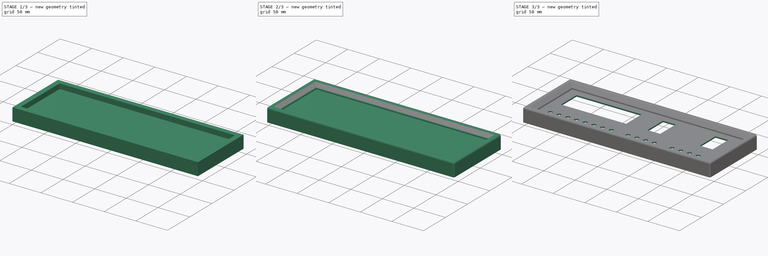
[diagram: build sequence overview — one tinted view per stage of 3, left to right]
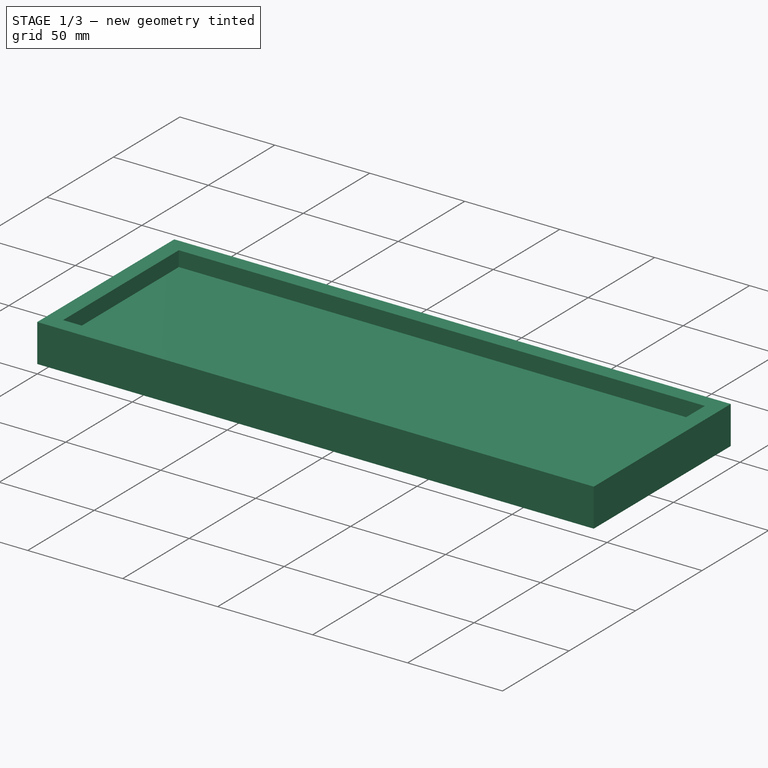
[diagram: stage 1 of 3 — iso view after this stage's code; geometry added in this stage tinted green]
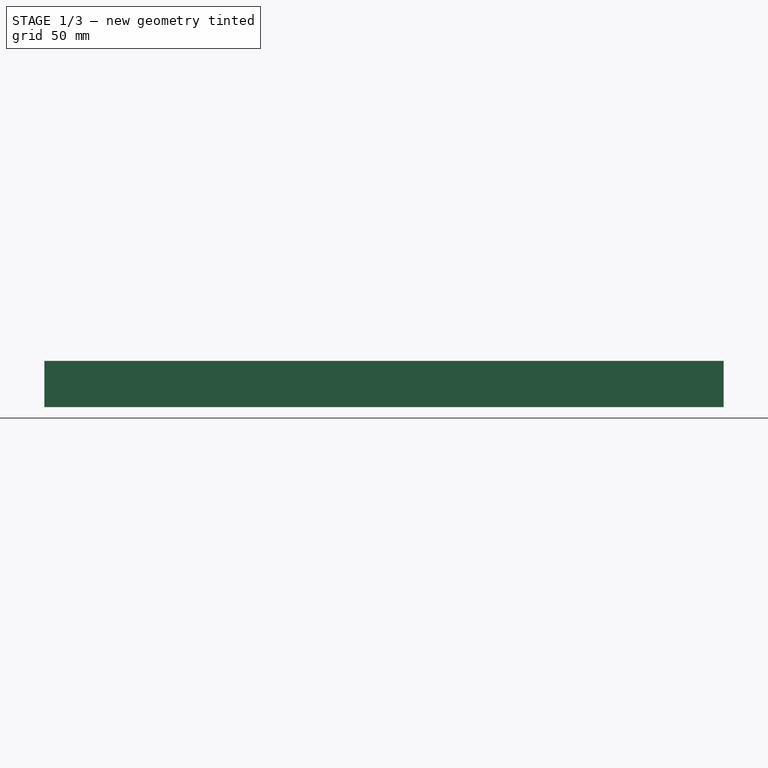
[diagram: stage 1 of 3 — front view after this stage's code; geometry added in this stage tinted green]
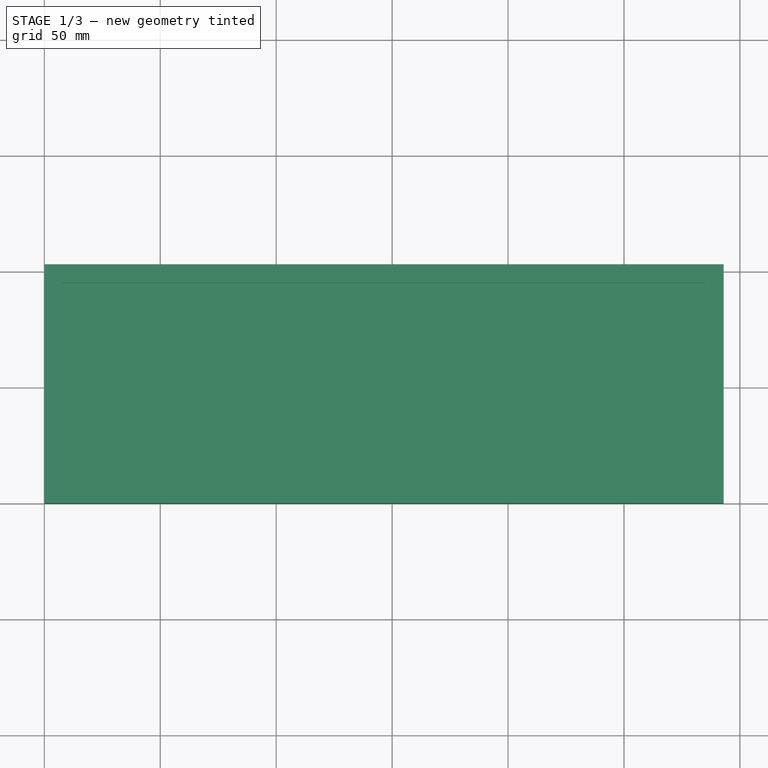
[diagram: stage 1 of 3 — top view after this stage's code; geometry added in this stage tinted green]
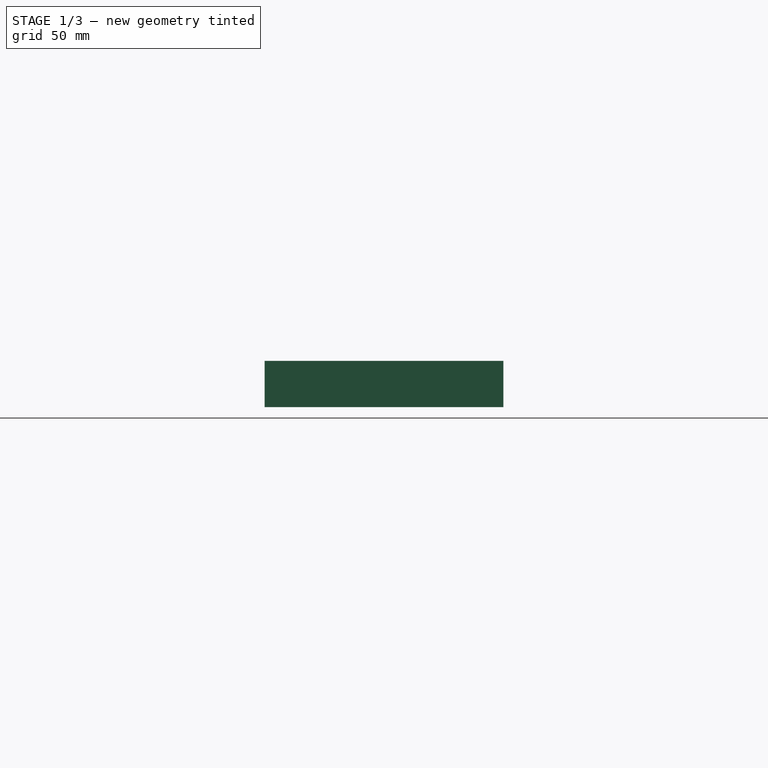
[diagram: stage 1 of 3 — right view after this stage's code; geometry added in this stage tinted green]
FCSTD DOCUMENT  (FreeCAD 0.19R24291 (Git))
Label: 3D printed front panel
License: All rights reserved
LicenseURL: http://en.wikipedia.org/wiki/All_rights_reserved
objects: Sketcher::SketchObject×4, PartDesign::Pocket×3, PartDesign::Pad×1, PartDesign::Chamfer×1, PartDesign::Fillet×1, PartDesign::Thickness×1, App::VRMLObject×1, PartDesign::Body×1
note: 19 computed .brp shape members not serialized (recipe doc carries the construction recipe); baked Part::Feature solids carry a one-line shape summary decoded from their .brp

FEATURE [Sketcher::SketchObject] Sketch
  FullyConstrained = true
  MapMode = 5
  Support = -> [XY_Plane]
  sketch-geometry (4):
    g0: LineSegment StartX=0 StartY=0 StartZ=0 EndX=293 EndY=0 EndZ=0
    g1: LineSegment StartX=293 StartY=0 StartZ=0 EndX=293 EndY=103 EndZ=0
    g2: LineSegment StartX=293 StartY=103 StartZ=0 EndX=0 EndY=103 EndZ=0
    g3: LineSegment StartX=0 StartY=103 StartZ=0 EndX=0 EndY=0 EndZ=0
  constraints (11):
    c: Coincident(g0,g1)
    c: Coincident(g1,g2)
    c: Coincident(g2,g3)
    c: Coincident(g3,g0)
    c: Horizontal(g0)
    c: Horizontal(g2)
    c: Vertical(g1)
    c: Vertical(g3)
    c: Coincident(g0,g-1)
    c: DistanceX(g2,g2) = 293
    c: DistanceY(g3,g3) = 103
FEATURE [PartDesign::Pad] Pad
  Direction = (1,1,1)
  Length = 20
  Length2 = 100
  Profile = -> Sketch
  Type = 0
FEATURE [Sketcher::SketchObject] Sketch001
  ExternalGeometry = -> [Pad]
  FullyConstrained = true
  MapMode = 5
  Placement = pos=(0,0,20) rot=(0,0,1;0rad)
  Support = -> [Pad]
  sketch-geometry (4):
    g0: LineSegment StartX=8 StartY=95 StartZ=0 EndX=285 EndY=95 EndZ=0
    g1: LineSegment StartX=285 StartY=95 StartZ=0 EndX=285 EndY=8 EndZ=0
    g2: LineSegment StartX=285 StartY=8 StartZ=0 EndX=8 EndY=8 EndZ=0
    g3: LineSegment StartX=8 StartY=8 StartZ=0 EndX=8 EndY=95 EndZ=0
  constraints (12):
    c: Coincident(g0,g1)
    c: Coincident(g1,g2)
    c: Coincident(g2,g3)
    c: Coincident(g3,g0)
    c: Horizontal(g0)
    c: Horizontal(g2)
    c: Vertical(g1)
    c: Vertical(g3)
    c: DistanceX(g-3,g0) = 8
    c: DistanceY(g0,g-3) = 8
    c: DistanceY(g-1,g2) = 8
    c: DistanceX(g0,g-4) = 8
FEATURE [PartDesign::Pocket] Pocket
  BaseFeature = -> Pad
  Length = 8
  Length2 = 100
  Profile = -> Sketch001
  Type = 0
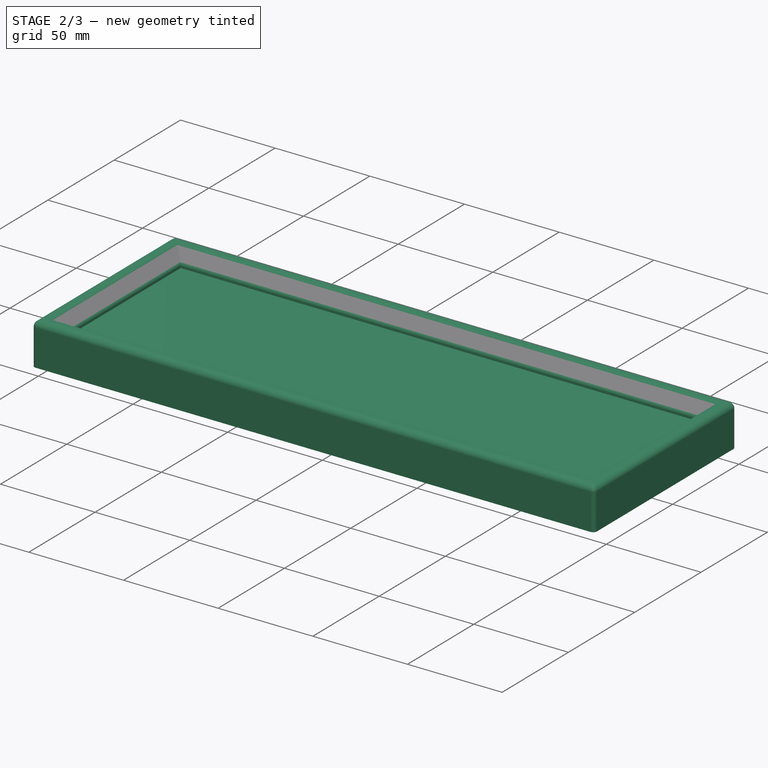
[diagram: stage 2 of 3 — iso view after this stage's code; geometry added in this stage tinted green]
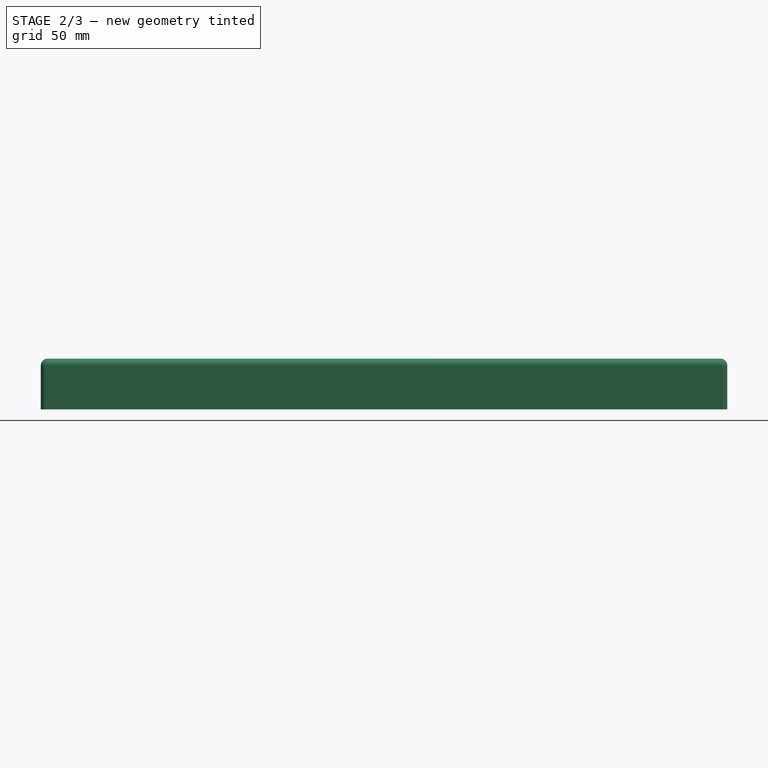
[diagram: stage 2 of 3 — front view after this stage's code; geometry added in this stage tinted green]
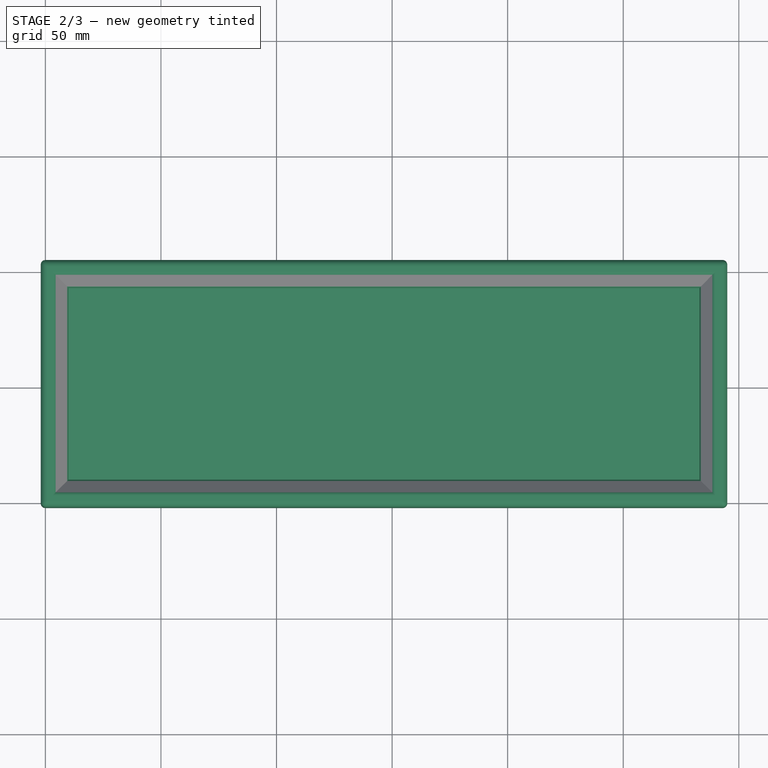
[diagram: stage 2 of 3 — top view after this stage's code; geometry added in this stage tinted green]
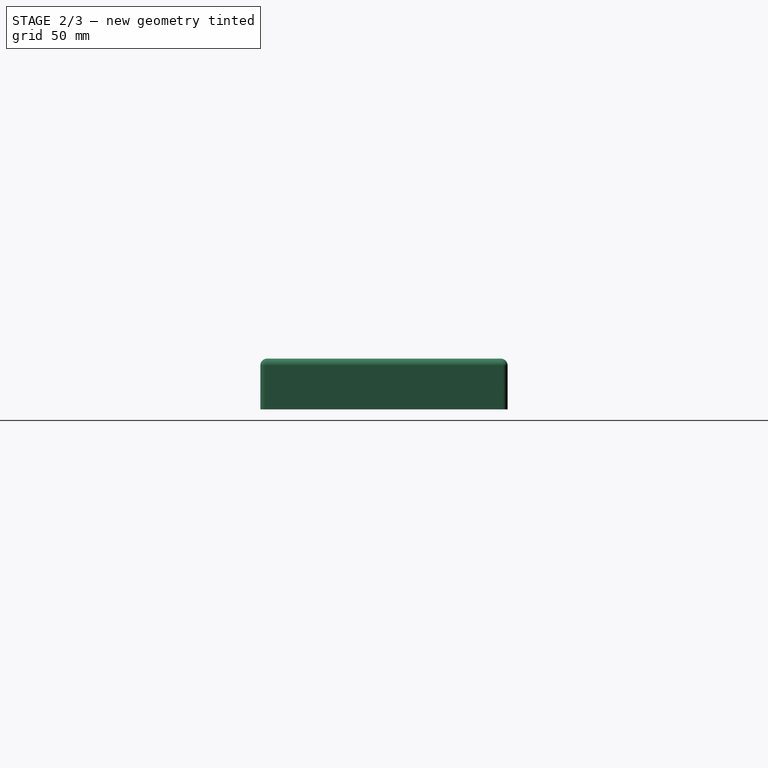
[diagram: stage 2 of 3 — right view after this stage's code; geometry added in this stage tinted green]
FEATURE [PartDesign::Chamfer] Chamfer
  Angle = 45
  Base = -> Pocket [Edge13,Edge16,Edge14,Edge15]
  BaseFeature = -> Pocket
  ChamferType = 0
  FlipDirection = false
  Size = 5
  Size2 = 1
  SupportTransform = false
FEATURE [PartDesign::Fillet] Fillet
  Base = -> Chamfer [Edge5,Edge6,Edge8,Edge7]
  BaseFeature = -> Chamfer
  Radius = 1
  SupportTransform = false
FEATURE [PartDesign::Thickness] Thickness
  Base = -> Fillet [Face18]
  BaseFeature = -> Fillet
  Intersection = false
  Join = 0
  Mode = 0
  SupportTransform = false
  Value = 2
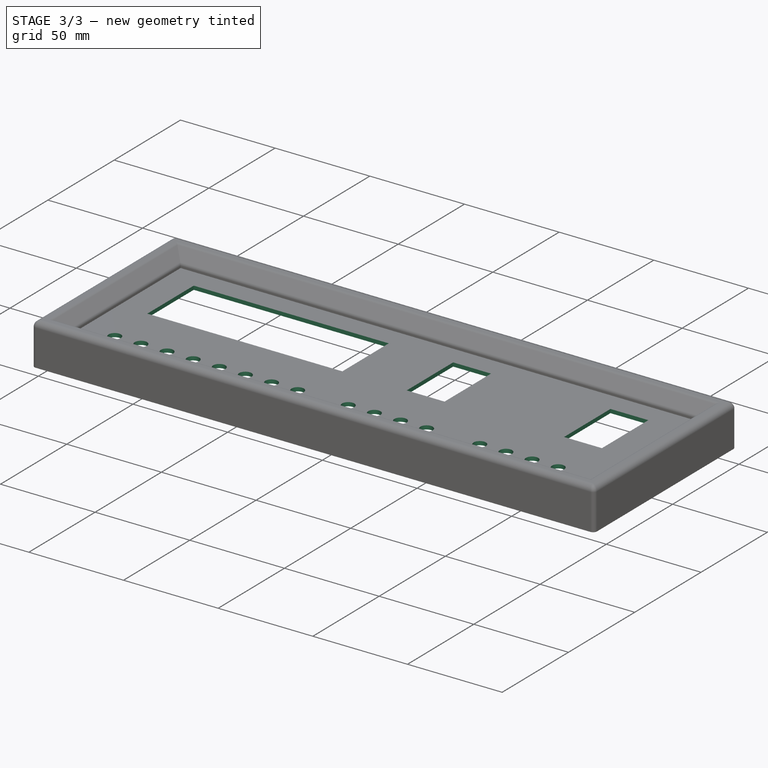
[diagram: stage 3 of 3 — iso view after this stage's code; geometry added in this stage tinted green]
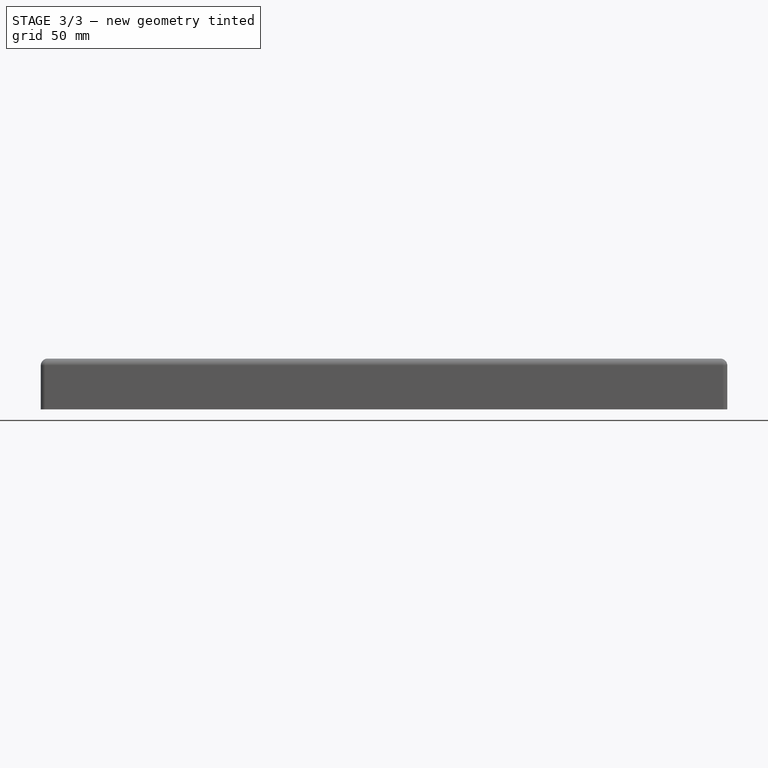
[diagram: stage 3 of 3 — front view after this stage's code; geometry added in this stage tinted green]
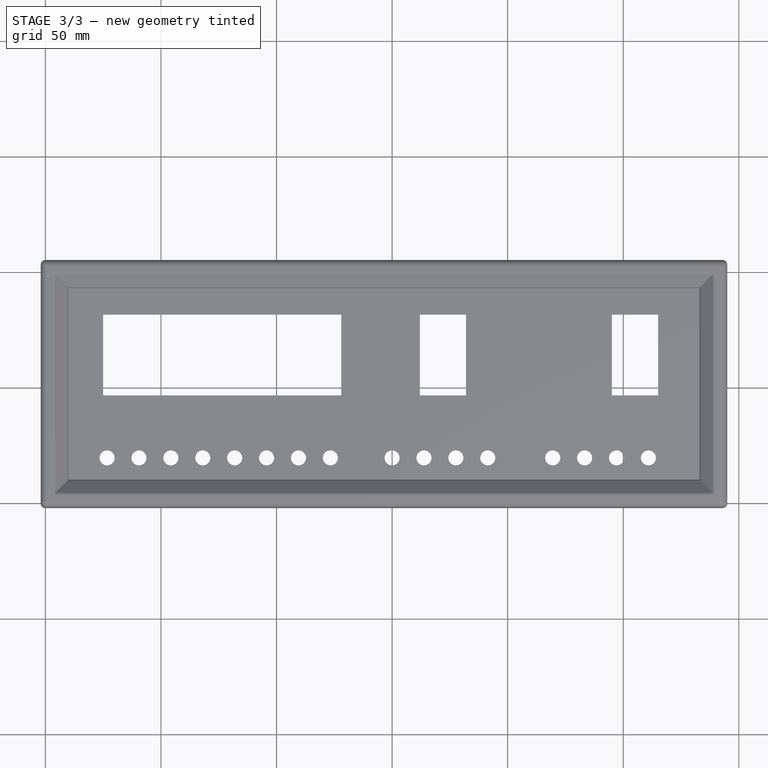
[diagram: stage 3 of 3 — top view after this stage's code; geometry added in this stage tinted green]
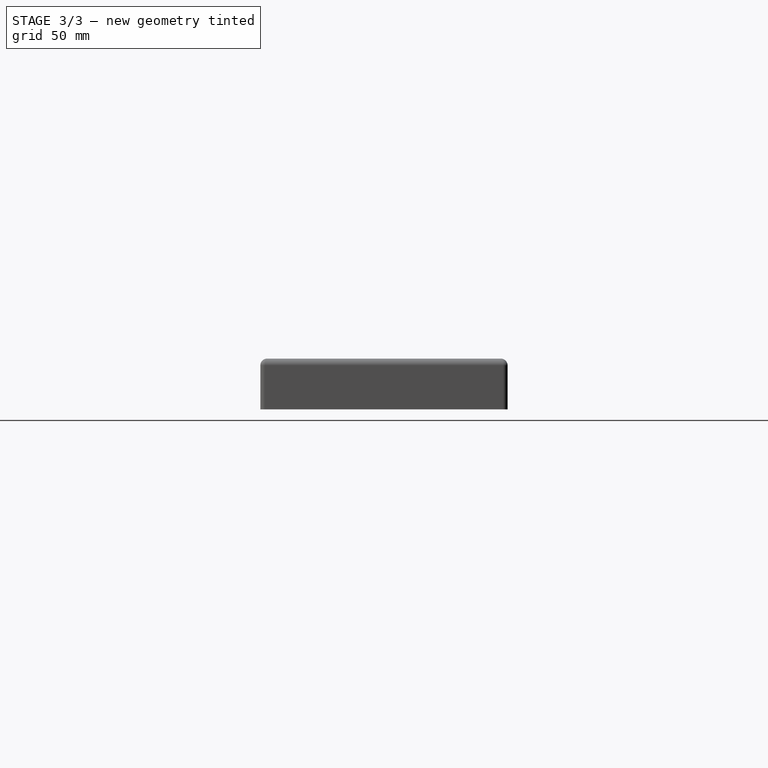
[diagram: stage 3 of 3 — right view after this stage's code; geometry added in this stage tinted green]
FEATURE [Sketcher::SketchObject] Sketch003
  FullyConstrained = false
  MapMode = 5
  Placement = pos=(0,0,14) rot=(0,0,1;0rad)
  sketch-geometry (12):
    g0: LineSegment StartX=25 StartY=81.5 StartZ=0 EndX=128 EndY=81.5 EndZ=0
    g1: LineSegment StartX=128 StartY=81.5 StartZ=0 EndX=128 EndY=46.5 EndZ=0
    g2: LineSegment StartX=128 StartY=46.5 StartZ=0 EndX=25 EndY=46.5 EndZ=0
    g3: LineSegment StartX=25 StartY=46.5 StartZ=0 EndX=25 EndY=81.5 EndZ=0
    g4: LineSegment StartX=162 StartY=81.5 StartZ=0 EndX=182 EndY=81.5 EndZ=0
    g5: LineSegment StartX=182 StartY=81.5 StartZ=0 EndX=182 EndY=46.5 EndZ=0
    g6: LineSegment StartX=182 StartY=46.5 StartZ=0 EndX=162 EndY=46.5 EndZ=0
    g7: LineSegment StartX=162 StartY=46.5 StartZ=0 EndX=162 EndY=81.5 EndZ=0
    g8: LineSegment StartX=245.1 StartY=81.5 StartZ=0 EndX=265.1 EndY=81.5 EndZ=0
    g9: LineSegment StartX=265.1 StartY=81.5 StartZ=0 EndX=265.1 EndY=46.5 EndZ=0
    g10: LineSegment StartX=265.1 StartY=46.5 StartZ=0 EndX=245.1 EndY=46.5 EndZ=0
    g11: LineSegment StartX=245.1 StartY=46.5 StartZ=0 EndX=245.1 EndY=81.5 EndZ=0
  constraints (33):
    c: Coincident(g0,g1)
    c: Coincident(g1,g2)
    c: Coincident(g2,g3)
    c: Coincident(g3,g0)
    c: Horizontal(g0)
    c: Horizontal(g2)
    c: Vertical(g1)
    c: Vertical(g3)
    c: DistanceY(g3,g3) = 35
    c: DistanceX(g0,g0) = 103
    c: Coincident(g4,g5)
    c: Coincident(g5,g6)
    c: Coincident(g6,g7)
    c: Coincident(g7,g4)
    c: Horizontal(g4)
    c: Horizontal(g6)
    c: Vertical(g5)
    c: Vertical(g7)
    c: Horizontal(g6,g1)
    c: Horizontal(g4,g0)
    c: DistanceX(g4,g4) = 20
    c: Coincident(g8,g9)
    c: Coincident(g9,g10)
    c: Coincident(g10,g11)
    c: Coincident(g11,g8)
    c: Horizontal(g8)
    c: Horizontal(g10)
    c: Vertical(g9)
    c: Vertical(g11)
    c: Horizontal(g8,g4)
    c: Horizontal(g10,g5)
    c: DistanceX(g8,g8) = 20
    c: DistanceX(g4,g8) = 63.1
FEATURE [PartDesign::Pocket] Pocket002
  BaseFeature = -> Thickness
  Length = 5
  Length2 = 100
  Profile = -> Sketch003
  Type = 0
FEATURE [App::VRMLObject] front_panel  label="front panel"
  Placement = pos=(-47.4,143,-4) rot=(0,0,1;0rad)
  Resources = front_panel/shapes3D/PinSocket_1x01_P2.54mm_Vertical.wrl | front_panel/shapes3D/Toggle Switch - Double .wrl | front_panel/shapes3D/C_Disc_D5.0mm_W2.5mm_P5.00mm.wrl | front_panel/shapes3D/CP_Axial_L10.0mm_D6.0mm_P15.00mm_Horizontal.wrl | front_panel/shapes3D/PinSocket_1x04_P2.54mm_Vertical.wrl | front_panel/shapes3D/R_Axial_DIN0207_L6.3mm_D2.5mm_P10.16mm_Horizontal.wrl | front_panel/shapes3D/PinSocket_1x08_P2.54mm_Vertical.wrl | front_panel/shapes3D/PinSocket_1x16_P2.54mm_Vertical.wrl | front_panel/shapes3D/R_Axial_DIN0207_L6.3mm_D2.5mm_P15.24mm_Horizontal.wrl | front_panel/shapes3D/DIP-14_W7.62mm.wrl | front_panel/shapes3D/LED_D5.0mm.wrl | front_panel/shapes3D/C_Disc_D4.3mm_W1.9mm_P5.00mm.wrl | front_panel/shapes3D/R_Axial_DIN0207_L6.3mm_D2.5mm_P7.62mm_Horizontal.wrl | front_panel/shapes3D/DIP-16_W7.62mm.wrl
FEATURE [Sketcher::SketchObject] Sketch004
  ExternalGeometry = -> [Pocket002]
  FullyConstrained = true
  MapMode = 5
  Placement = pos=(0,0,14) rot=(0,0,1;0rad)
  Support = -> [Pocket002]
  sketch-geometry (17):
    g0: LineSegment StartX=-2 StartY=19.5 StartZ=0 EndX=295 EndY=19.5 EndZ=0
    g1: Circle CenterX=26.7 CenterY=19.5 CenterZ=0 NormalX=0 NormalY=0 NormalZ=1 AngleXU=0 Radius=3.25
    g2: Circle CenterX=40.5 CenterY=19.5 CenterZ=0 NormalX=0 NormalY=0 NormalZ=1 AngleXU=0 Radius=3.25
    g3: Circle CenterX=54.3 CenterY=19.5 CenterZ=0 NormalX=0 NormalY=0 NormalZ=1 AngleXU=0 Radius=3.25
    g4: Circle CenterX=68.1 CenterY=19.5 CenterZ=0 NormalX=0 NormalY=0 NormalZ=1 AngleXU=0 Radius=3.25
    g5: Circle CenterX=81.9 CenterY=19.5 CenterZ=0 NormalX=0 NormalY=0 NormalZ=1 AngleXU=0 Radius=3.25
    g6: Circle CenterX=95.7 CenterY=19.5 CenterZ=0 NormalX=0 NormalY=0 NormalZ=1 AngleXU=0 Radius=3.25
    g7: Circle CenterX=109.5 CenterY=19.5 CenterZ=0 NormalX=0 NormalY=0 NormalZ=1 AngleXU=0 Radius=3.25
    g8: Circle CenterX=123.3 CenterY=19.5 CenterZ=0 NormalX=0 NormalY=0 NormalZ=1 AngleXU=0 Radius=3.25
    g9: Circle CenterX=150 CenterY=19.5 CenterZ=0 NormalX=0 NormalY=0 NormalZ=1 AngleXU=0 Radius=3.25
    g10: Circle CenterX=163.8 CenterY=19.5 CenterZ=0 NormalX=0 NormalY=0 NormalZ=1 AngleXU=0 Radius=3.25
    g11: Circle CenterX=177.6 CenterY=19.5 CenterZ=0 NormalX=0 NormalY=0 NormalZ=1 AngleXU=0 Radius=3.25
    g12: Circle CenterX=191.4 CenterY=19.5 CenterZ=0 NormalX=0 NormalY=0 NormalZ=1 AngleXU=0 Radius=3.25
    g13: Circle CenterX=219.5 CenterY=19.5 CenterZ=0 NormalX=0 NormalY=0 NormalZ=1 AngleXU=0 Radius=3.25
    g14: Circle CenterX=233.3 CenterY=19.5 CenterZ=0 NormalX=0 NormalY=0 NormalZ=1 AngleXU=0 Radius=3.25
    g15: Circle CenterX=247.1 CenterY=19.5 CenterZ=0 NormalX=0 NormalY=0 NormalZ=1 AngleXU=0 Radius=3.25
    g16: Circle CenterX=260.9 CenterY=19.5 CenterZ=0 NormalX=0 NormalY=0 NormalZ=1 AngleXU=0 Radius=3.25
  constraints (38):
    c: PointOnObject(g0,g-4)
    c: PointOnObject(g0,g-5)
    c: Horizontal(g0)
    c: DistanceY(g0,g-3) = 85.5
    c: PointOnObject(g1,g0)
    c: PointOnObject(g2,g0)
    c: PointOnObject(g3,g0)
    c: PointOnObject(g4,g0)
    c: PointOnObject(g5,g0)
    c: PointOnObject(g6,g0)
    c: PointOnObject(g7,g0)
    c: PointOnObject(g8,g0)
    c: PointOnObject(g9,g0)
    c: PointOnObject(g10,g0)
    c: PointOnObject(g11,g0)
    c: PointOnObject(g12,g0)
    c: PointOnObject(g13,g0)
    c: PointOnObject(g14,g0)
    c: PointOnObject(g15,g0)
    c: PointOnObject(g16,g0)
    c: DistanceX(g15,g16) = 13.8
    c: DistanceX(g14,g15) = 13.8
    c: DistanceX(g13,g14) = 13.8
    c: DistanceX(g11,g12) = 13.8
    c: DistanceX(g10,g11) = 13.8
    c: DistanceX(g9,g10) = 13.8
    c: DistanceX(g12,g13) = 28.1
    c: DistanceX(g7,g8) = 13.8
    c: DistanceX(g6,g7) = 13.8
    c: DistanceX(g5,g6) = 13.8
    c: DistanceX(g4,g5) = 13.8
    c: DistanceX(g3,g4) = 13.8
    c: DistanceX(g2,g3) = 13.8
    c: DistanceX(g1,g2) = 13.8
    c: DistanceX(g0,g1) = 28.7
    c: Diameter(g1) = 6.5
    c: Equal(g1, g2-g16) x15
    c: DistanceX(g8,g9) = 26.7
FEATURE [PartDesign::Pocket] Pocket003
  BaseFeature = -> Pocket002
  Length = 5
  Length2 = 100
  Profile = -> Sketch004
  Type = 2
FEATURE [PartDesign::Body] Body
  Group = -> [Sketch,Pad,Sketch001,Pocket,Chamfer,Fillet,Thickness,Sketch003,Pocket002,Sketch004,Pocket003]
  Origin = -> Origin
  Tip = -> Pocket003
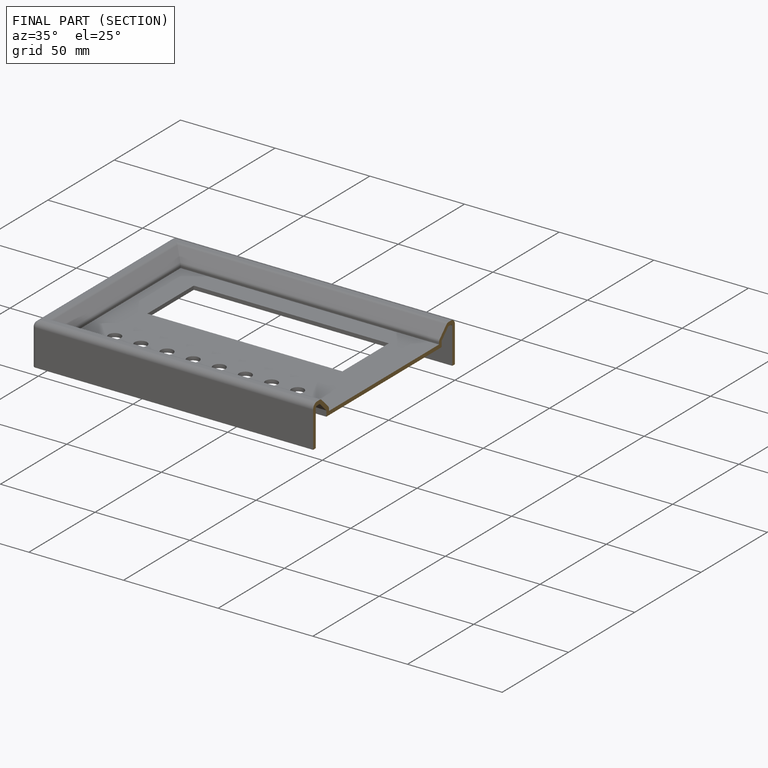
[diagram: finished part — half-section view (interior)]
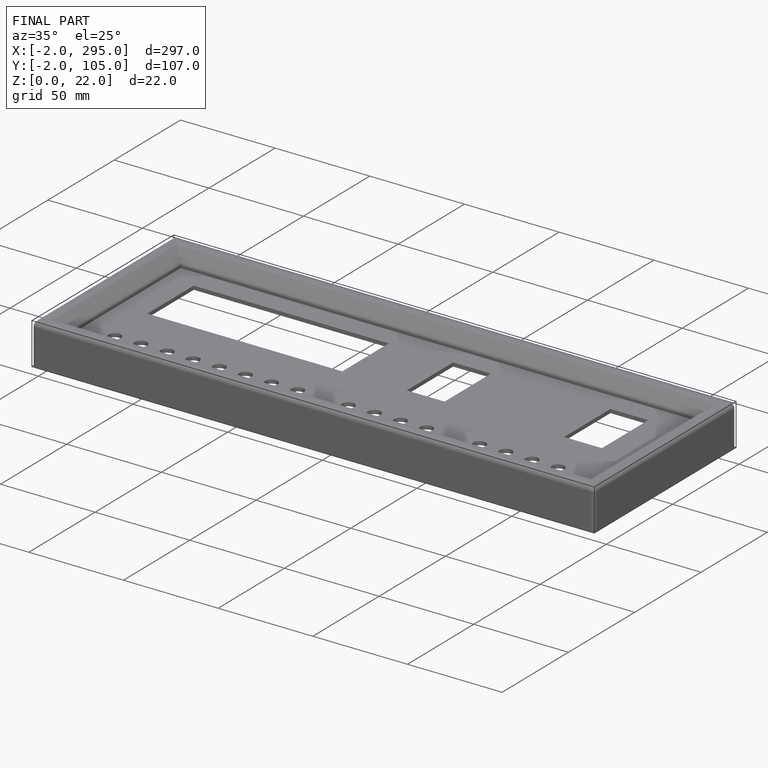
[diagram: finished part — iso view with bounding-box wireframe]
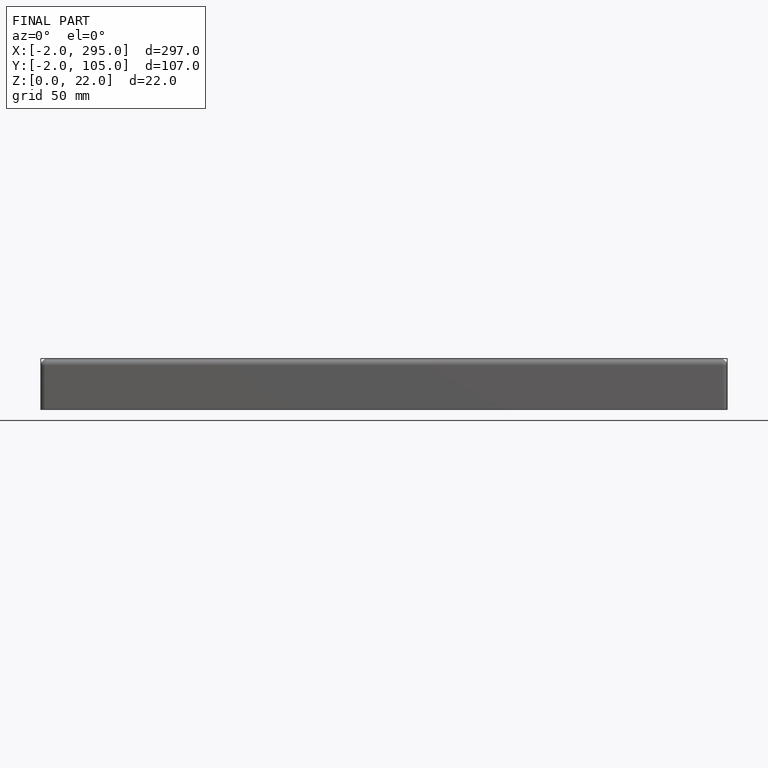
[diagram: finished part — front view with bounding-box wireframe]
